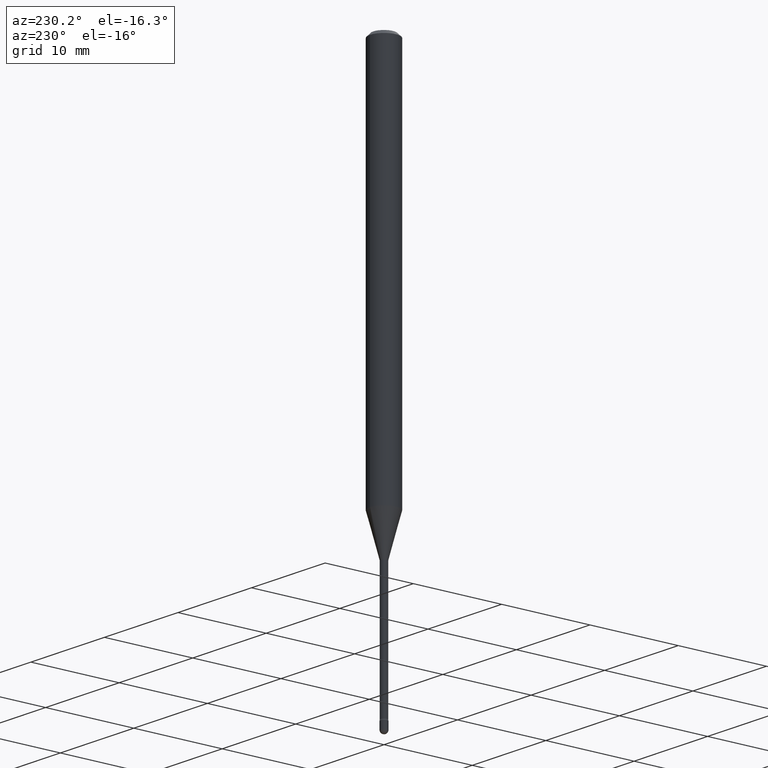
[diagram: clean part render]
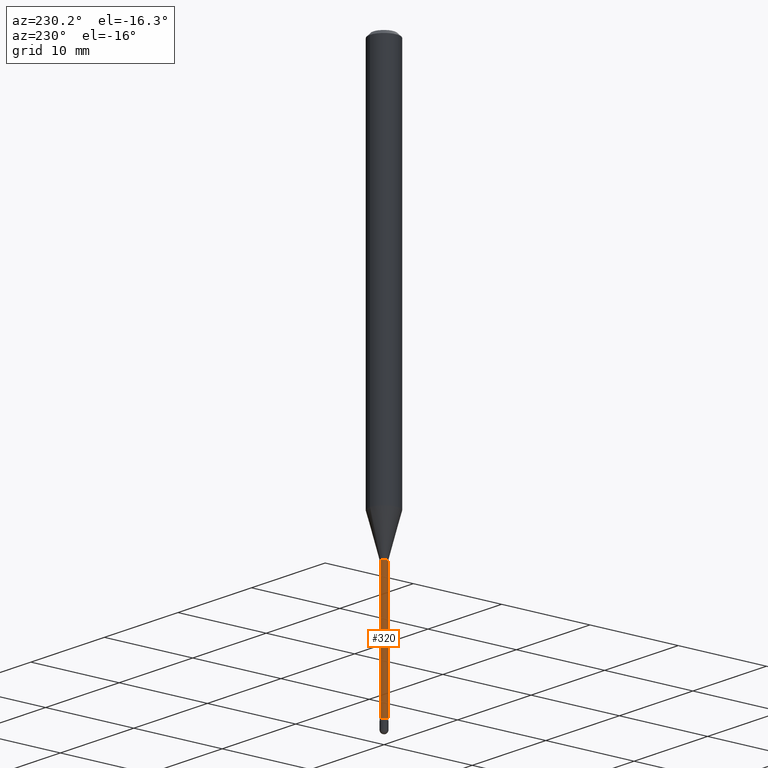
[diagram: same view with one face highlighted and labeled with its STEP entity id]
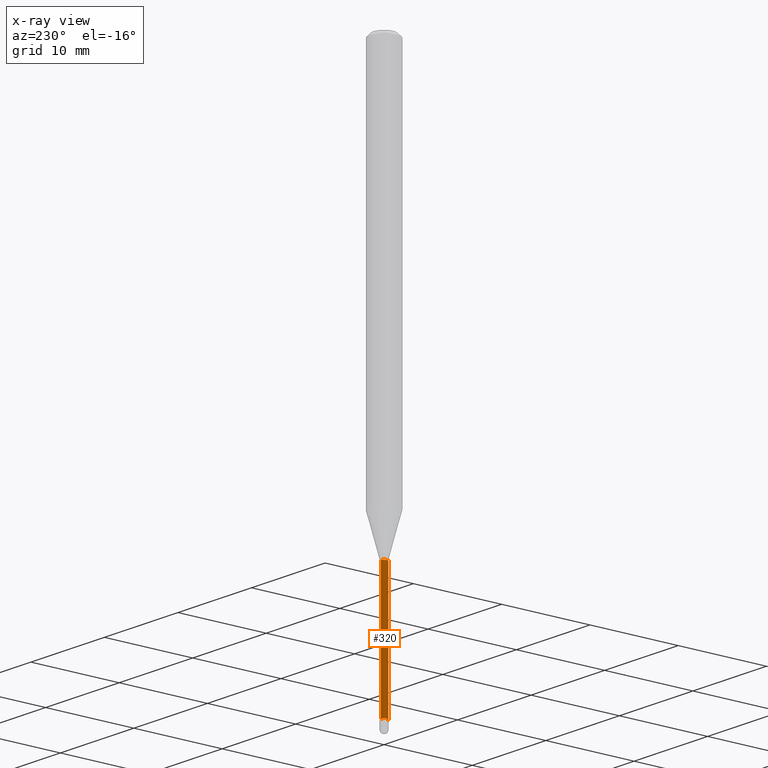
[diagram: x-ray of the same camera — body ghosted, the highlighted face saturated]
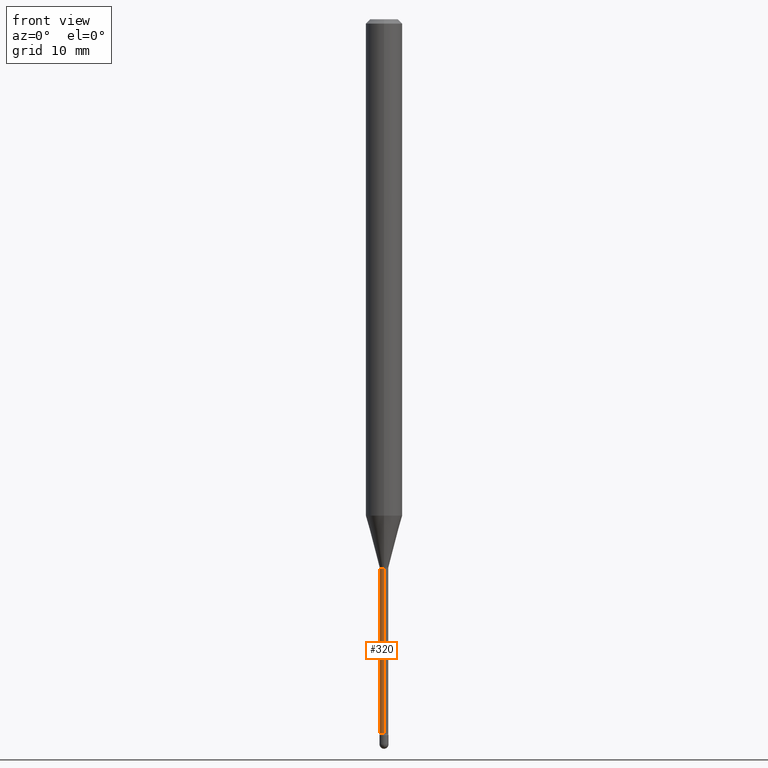
[diagram: same view with one face highlighted and labeled with its STEP entity id]
A machine part, auxiliary view. The second image highlights one B-rep face of the part: STEP entity #320.
The next image is the same camera in x-ray: the body ghosted, the highlighted face saturated — about 0% of this face is hidden behind the body in this view.
A second angle (front view) of the same face is appended — the face is thin or edge-on in the first view.
In plain terms, the highlighted cylindrical surface (edge-blend (fillet) strip) has radius 0.3696 mm, axis along (-0, 0, 1).
Its self-contained STEP definition (entity closure, byte-faithful):
#19 = EDGE_CURVE ( 'NONE', #302, #504, #483, .T. ) ;
#36 = CARTESIAN_POINT ( 'NONE',  ( -1.169113584055446105E-44, 1.669184350826100908E-30, 4.780733988912460139E-16 ) ) ;
#42 = VECTOR ( 'NONE', #336, 39.37007874015748143 ) ;
#79 = ORIENTED_EDGE ( 'NONE', *, *, #100, .T. ) ;
#82 = EDGE_LOOP ( 'NONE', ( #289, #79, #182, #137 ) ) ;
#85 = VERTEX_POINT ( 'NONE', #477 ) ;
#100 = EDGE_CURVE ( 'NONE', #85, #356, #264, .T. ) ;
#118 = DIRECTION ( 'NONE',  ( -6.982962677686266711E-15, -1.000000000000000000, 3.491474164922029336E-15 ) ) ;
#137 = ORIENTED_EDGE ( 'NONE', *, *, #19, .F. ) ;
#139 = DIRECTION ( 'NONE',  ( -2.445473815707476510E-29, 3.491474164922030519E-15, 1.000000000000000000 ) ) ;
#165 = FACE_OUTER_BOUND ( 'NONE', #82, .T. ) ;
#181 = DIRECTION ( 'NONE',  ( -6.982962677686265133E-15, -1.000000000000000000, 0.000000000000000000 ) ) ;
#182 = ORIENTED_EDGE ( 'NONE', *, *, #466, .T. ) ;
#187 = EDGE_CURVE ( 'NONE', #85, #302, #228, .T. ) ;
#217 = AXIS2_PLACEMENT_3D ( 'NONE', #357, #273, #181 ) ;
#221 = DIRECTION ( 'NONE',  ( -2.445473815707476510E-29, 3.491474164922030519E-15, 1.000000000000000000 ) ) ;
#228 = LINE ( 'NONE', #370, #42 ) ;
#264 = CIRCLE ( 'NONE', #217, 0.01455000000000002472 ) ;
#273 = DIRECTION ( 'NONE',  ( -2.445473815707476510E-29, 3.491474164922030519E-15, 1.000000000000000000 ) ) ;
#281 = LINE ( 'NONE', #347, #344 ) ;
#289 = ORIENTED_EDGE ( 'NONE', *, *, #187, .F. ) ;
#302 = VERTEX_POINT ( 'NONE', #560 ) ;
#307 = CYLINDRICAL_SURFACE ( 'NONE', #562, 0.01455000000000001084 ) ;
#320 = ADVANCED_FACE ( 'NONE', ( #165 ), #307, .T. ) ;
#324 = CARTESIAN_POINT ( 'NONE',  ( 4.602320064564393687E-29, -6.570866349464526034E-15, -1.881974787463811083 ) ) ;
#329 = DIRECTION ( 'NONE',  ( -6.982962677686266711E-15, -1.000000000000000000, 0.000000000000000000 ) ) ;
#336 = DIRECTION ( 'NONE',  ( -2.445473815707476510E-29, 3.491474164922030519E-15, 1.000000000000000000 ) ) ;
#344 = VECTOR ( 'NONE', #139, 39.37007874015748143 ) ;
#347 = CARTESIAN_POINT ( 'NONE',  ( -1.016021069603352548E-16, -0.01455000000000001084, 5.288743479908616571E-16 ) ) ;
#356 = VERTEX_POINT ( 'NONE', #421 ) ;
#357 = CARTESIAN_POINT ( 'NONE',  ( 5.985900383404751358E-29, -8.546244252633021898E-15, -2.447746667724196357 ) ) ;
#370 = CARTESIAN_POINT ( 'NONE',  ( 1.033839680530946418E-16, 0.01455000000000001084, 4.272724497916305187E-16 ) ) ;
#421 = CARTESIAN_POINT ( 'NONE',  ( -1.016021069602754739E-16, -0.01455000000000856997, -2.447746667724196357 ) ) ;
#453 = CARTESIAN_POINT ( 'NONE',  ( -1.016021069602891557E-16, -0.01455000000000657157, -1.881974787463811083 ) ) ;
#466 = EDGE_CURVE ( 'NONE', #356, #504, #281, .T. ) ;
#477 = CARTESIAN_POINT ( 'NONE',  ( 1.067590460480151308E-16, 0.01454999999999147774, -2.447746667724196357 ) ) ;
#483 = CIRCLE ( 'NONE', #552, 0.01455000000000000043 ) ;
#489 = DIRECTION ( 'NONE',  ( -2.445473815707476510E-29, 3.491474164922030519E-15, 1.000000000000000000 ) ) ;
#504 = VERTEX_POINT ( 'NONE', #453 ) ;
#552 = AXIS2_PLACEMENT_3D ( 'NONE', #324, #489, #329 ) ;
#560 = CARTESIAN_POINT ( 'NONE',  ( 1.033839680531545582E-16, 0.01454999999999342930, -1.881974787463811083 ) ) ;
#562 = AXIS2_PLACEMENT_3D ( 'NONE', #36, #221, #118 ) ;